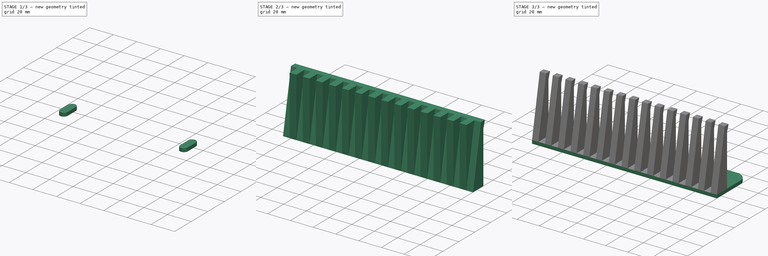
[diagram: build sequence overview — one tinted view per stage of 3, left to right]
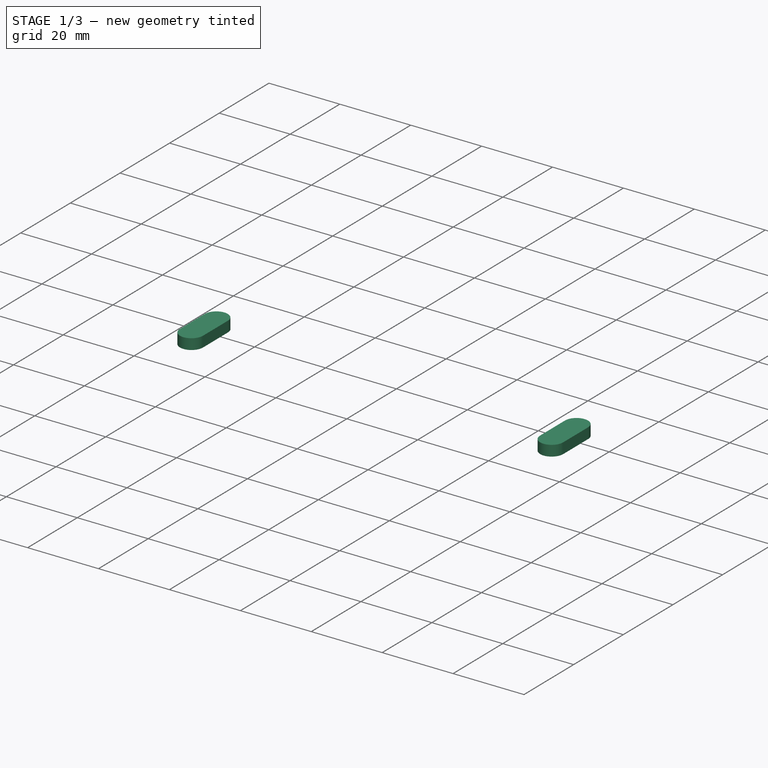
[diagram: stage 1 of 3 — iso view after this stage's code; geometry added in this stage tinted green]
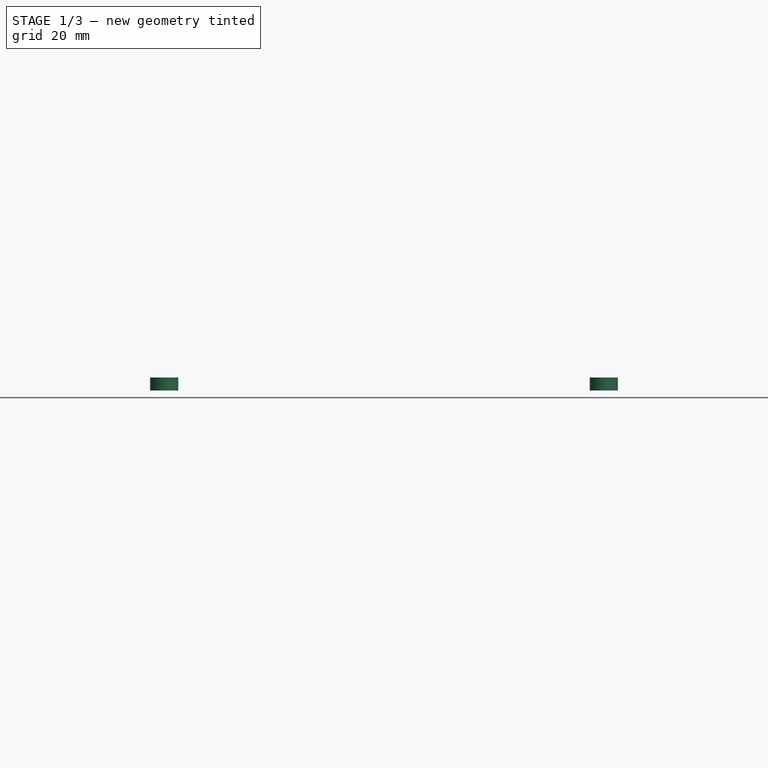
[diagram: stage 1 of 3 — front view after this stage's code; geometry added in this stage tinted green]
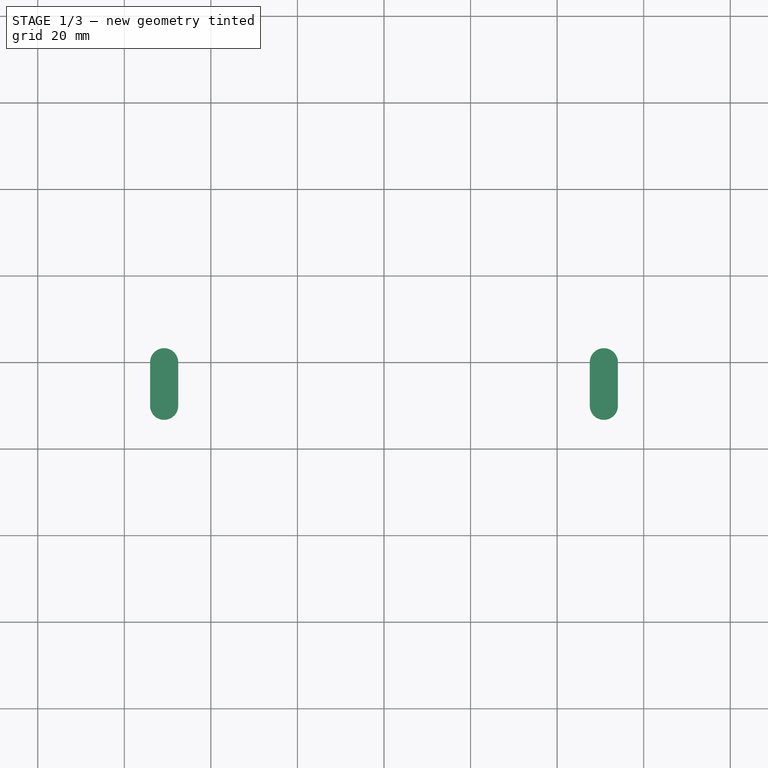
[diagram: stage 1 of 3 — top view after this stage's code; geometry added in this stage tinted green]
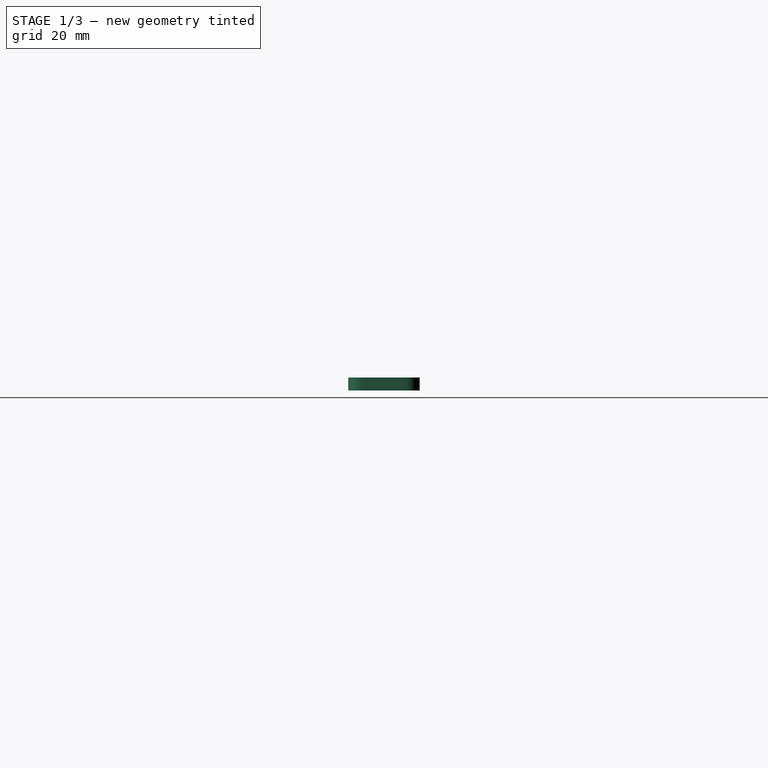
[diagram: stage 1 of 3 — right view after this stage's code; geometry added in this stage tinted green]
FCSTD DOCUMENT  (FreeCAD 0.16R6700 (Git))
Label: wirerack
License: All rights reserved
LicenseURL: http://en.wikipedia.org/wiki/All_rights_reserved
objects: Sketcher::SketchObject×4, Part::Extrusion×4, Part::Cut×2, Part::MultiFuse×1
note: 11 computed .brp shape members not serialized (recipe doc carries the construction recipe); baked Part::Feature solids carry a one-line shape summary decoded from their .brp

FEATURE [Sketcher::SketchObject] Sketch
  sketch-geometry (8):
    g0: LineSegment StartX=-83.5 StartY=20 StartZ=0 EndX=-83.5 EndY=-10 EndZ=0
    g1: LineSegment StartX=-83.5 StartY=-10 StartZ=0 EndX=83.5 EndY=-10 EndZ=0
    g2: LineSegment StartX=83.5 StartY=-10 StartZ=0 EndX=83.5 EndY=20 EndZ=0
    g3: ArcOfCircle CenterX=-73.5 CenterY=20 CenterZ=0 NormalX=0 NormalY=0 NormalZ=1 Radius=10 StartAngle=1.5708 EndAngle=3.14159
    g4: ArcOfCircle CenterX=73.5 CenterY=20 CenterZ=0 NormalX=0 NormalY=0 NormalZ=1 Radius=10 StartAngle=6.28318 EndAngle=7.85518
    g5: LineSegment StartX=-73.5 StartY=30 StartZ=0 EndX=73.488 EndY=30 EndZ=0
    g6: Circle CenterX=50.8 CenterY=10 CenterZ=0 NormalX=0 NormalY=0 NormalZ=1 Radius=4.6875
    g7: Circle CenterX=-50.8 CenterY=10 CenterZ=0 NormalX=0 NormalY=0 NormalZ=1 Radius=4.6875
  constraints (26):
    c: Vertical(g0)
    c: Coincident(g0,g1)
    c: Horizontal(g1)
    c: Coincident(g1,g2)
    c: Vertical(g2)
    c: DistanceX(g-1,g1) = 83.5
    c: DistanceX(g1,g1) = 167
    c: Coincident(g5,g4)
    c: Horizontal(g5)
    c: Tangent(g5,g3)
    c: DistanceX(g-1,g6) = 50.8
    c: Equal(g2,g0)
    c: DistanceY(g2,g2) = 30
    c: Coincident(g2,g4)
    c: DistanceY(g1,g4) = 40
    c: Coincident(g0,g3)
    c: DistanceY(g1,g-1) = 10
    c: Radius(g6) = 4.6875
    c: Radius(g3) = 10
    c: Radius(g4) = 10
    c: DistanceY(g-1,g6) = 10
    c: Radius(g7) = 4.6875
    c: DistanceX(g7,g-1) = 50.8
    c: Coincident(g3,g5)
    c: DistanceY(g-1,g7) = 10
    c: DistanceX(g5,g5) = 146.988
FEATURE [Part::Extrusion] Extrude
  Base = -> Sketch
  Dir = (0,0,3)
  Solid = true
FEATURE [Sketcher::SketchObject] Sketch001
  Placement = pos=(0,0,3) rot=(0,0,1;0rad)
  Support = -> Extrude [Face10]
  sketch-geometry (9):
    g0: ArcOfCircle CenterX=-50.8 CenterY=10 CenterZ=0 NormalX=0 NormalY=0 NormalZ=1 Radius=3.25 StartAngle=3.14159 EndAngle=6.28319
    g1: ArcOfCircle CenterX=-50.8 CenterY=20 CenterZ=0 NormalX=0 NormalY=0 NormalZ=1 Radius=3.25 StartAngle=0 EndAngle=3.14159
    g2: LineSegment StartX=-47.55 StartY=10 StartZ=0 EndX=-47.55 EndY=20 EndZ=0
    g3: LineSegment StartX=-54.05 StartY=10 StartZ=0 EndX=-54.05 EndY=20 EndZ=0
    g4: ArcOfCircle CenterX=50.8 CenterY=10 CenterZ=0 NormalX=0 NormalY=0 NormalZ=1 Radius=3.25 StartAngle=3.14159 EndAngle=6.28319
    g5: ArcOfCircle CenterX=50.8 CenterY=20 CenterZ=0 NormalX=0 NormalY=0 NormalZ=1 Radius=3.25 StartAngle=0 EndAngle=3.14159
    g6: LineSegment StartX=54.05 StartY=10 StartZ=0 EndX=54.05 EndY=20 EndZ=0
    g7: LineSegment StartX=47.55 StartY=10 StartZ=0 EndX=47.55 EndY=20 EndZ=0
    g8: LineSegment [constr] StartX=-54.05 StartY=10 StartZ=0 EndX=47.55 EndY=10 EndZ=0
  constraints (22):
    c: Tangent(g0,g3) = 1.5708
    c: Tangent(g0,g2) = -1.5708
    c: Tangent(g2,g1) = -1.5708
    c: Tangent(g3,g1) = 1.5708
    c: Vertical(g2)
    c: Equal(g0,g1)
    c: DistanceX(g0,g-1) = 50.8
    c: Radius(g0) = 3.25
    c: DistanceY(g-1,g0) = 10
    c: DistanceY(g2,g2) = 10
    c: Tangent(g4,g7) = 1.5708
    c: Tangent(g4,g6) = -1.5708
    c: Tangent(g6,g5) = -1.5708
    c: Tangent(g7,g5) = 1.5708
    c: Vertical(g6)
    c: Equal(g4,g5)
    c: Radius(g4) = 3.25
    c: DistanceY(g6,g6) = 10
    c: Coincident(g0,g8)
    c: Coincident(g4,g8)
    c: Distance(g8) = 101.6
    c: Angle(g8) = 0
FEATURE [Part::Extrusion] Extrude001
  Base = -> Sketch001
  Dir = (0,0,-3)
  Solid = true
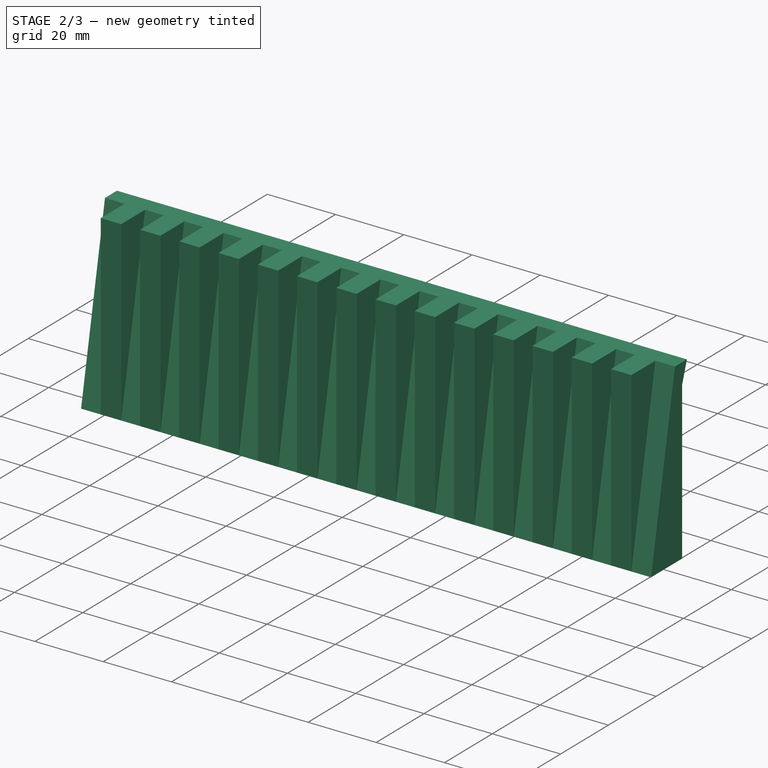
[diagram: stage 2 of 3 — iso view after this stage's code; geometry added in this stage tinted green]
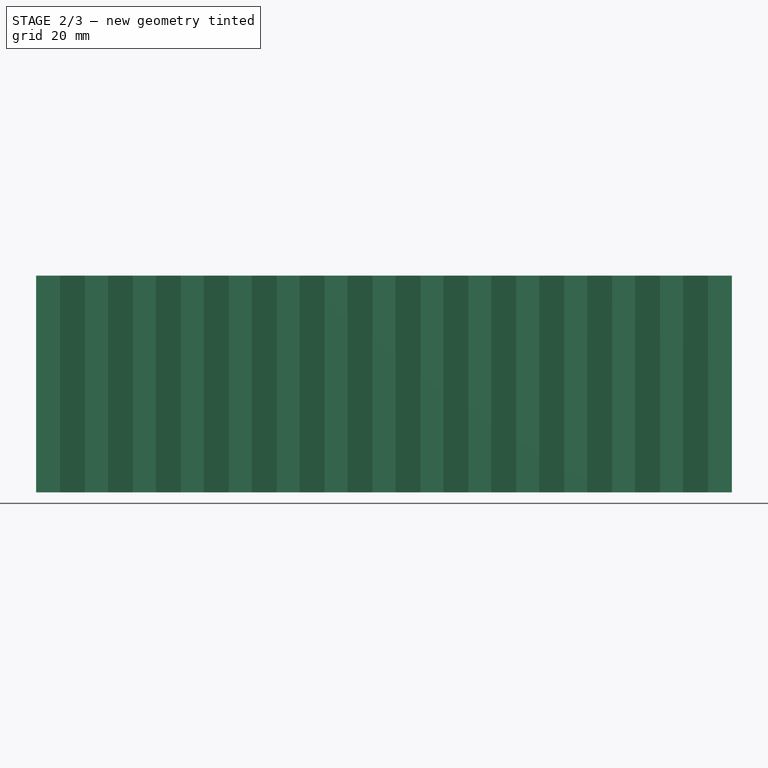
[diagram: stage 2 of 3 — front view after this stage's code; geometry added in this stage tinted green]
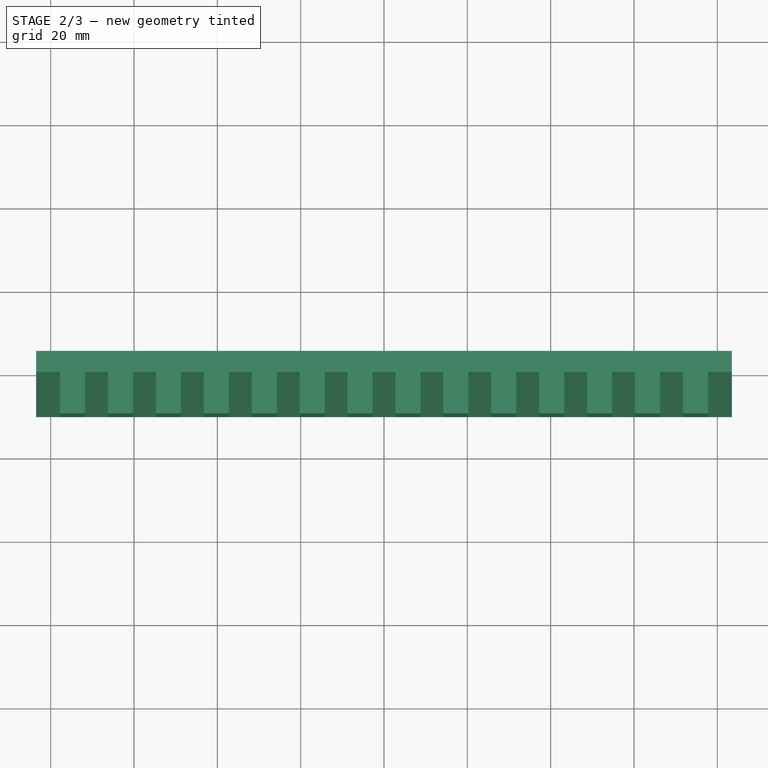
[diagram: stage 2 of 3 — top view after this stage's code; geometry added in this stage tinted green]
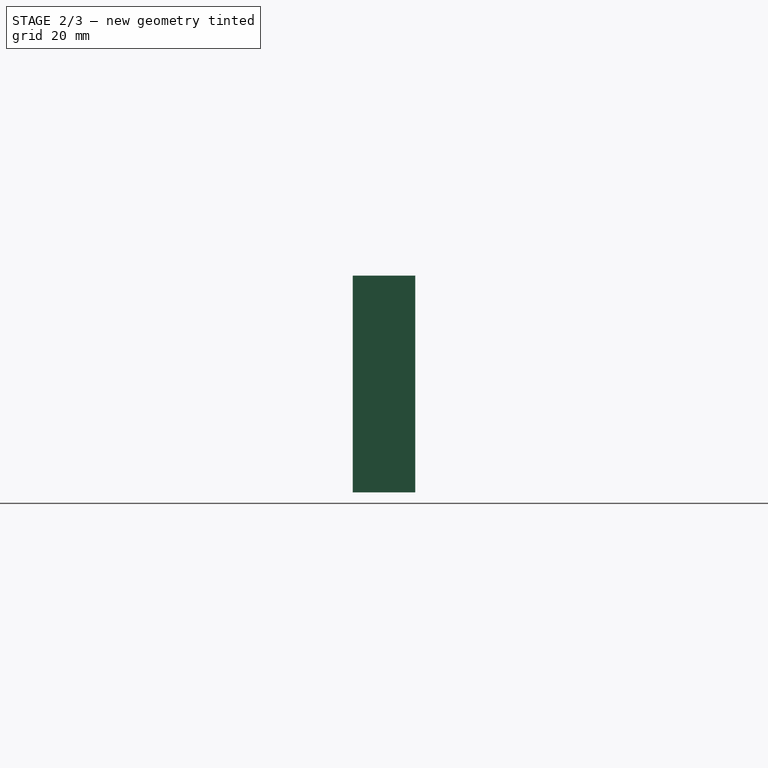
[diagram: stage 2 of 3 — right view after this stage's code; geometry added in this stage tinted green]
FEATURE [Part::Cut] Cut
  Base = -> Extrude
  Tool = -> Extrude001
FEATURE [Sketcher::SketchObject] Sketch003
  Placement = pos=(-83.5,0,0) rot=(0.57735,-0.57735,-0.57735;2.0944rad)
  Support = -> Cut [Face1]
  sketch-geometry (5):
    g0: LineSegment StartX=0 StartY=55 StartZ=0 EndX=-5 EndY=55 EndZ=0
    g1: LineSegment StartX=-5 StartY=55 StartZ=0 EndX=-3 EndY=49 EndZ=0
    g2: LineSegment StartX=-3 StartY=49 StartZ=0 EndX=-3 EndY=3 EndZ=0
    g3: LineSegment StartX=0 StartY=55 StartZ=0 EndX=10 EndY=3 EndZ=0
    g4: LineSegment StartX=10 StartY=3 StartZ=0 EndX=-3 EndY=3 EndZ=0
  constraints (15):
    c: PointOnObject(g0,g-2)
    c: Horizontal(g0)
    c: Coincident(g0,g1)
    c: Coincident(g1,g2)
    c: Vertical(g2)
    c: DistanceX(g0,g0) = 5
    c: DistanceY(g2,g2) = 46
    c: Coincident(g2,g4)
    c: Coincident(g3,g4)
    c: Coincident(g0,g3)
    c: DistanceX(g4,g4) = 13
    c: DistanceY(g3,g0) = 52
    c: DistanceY(g-1,g2) = 3
    c: DistanceX(g2,g-1) = 3
    c: Horizontal(g4)
FEATURE [Part::Extrusion] Extrude002
  Base = -> Sketch003
  Dir = (167,0,0)
  Solid = true
FEATURE [Sketcher::SketchObject] Sketch004
  Placement = pos=(0,-10,0) rot=(1,0,0;1.5708rad)
  Support = -> Cut [Face3]
  sketch-geometry (69):
    g0: LineSegment StartX=-77.75 StartY=55 StartZ=0 EndX=-71.75 EndY=55 EndZ=0
    g1: LineSegment StartX=-71.75 StartY=55 StartZ=0 EndX=-71.75 EndY=3 EndZ=0
    g2: LineSegment StartX=-71.75 StartY=3 StartZ=0 EndX=-77.75 EndY=3 EndZ=0
    g3: LineSegment StartX=-77.75 StartY=3 StartZ=0 EndX=-77.75 EndY=55 EndZ=0
    g4: LineSegment StartX=-66.25 StartY=55 StartZ=0 EndX=-60.25 EndY=55 EndZ=0
    g5: LineSegment StartX=-60.25 StartY=55 StartZ=0 EndX=-60.25 EndY=3 EndZ=0
    g6: LineSegment StartX=-60.25 StartY=3 StartZ=0 EndX=-66.25 EndY=3 EndZ=0
    g7: LineSegment StartX=-66.25 StartY=3 StartZ=0 EndX=-66.25 EndY=55 EndZ=0
    g8: LineSegment [constr] StartX=-77.75 StartY=55 StartZ=0 EndX=-66.25 EndY=55 EndZ=0
    g9: LineSegment StartX=-54.75 StartY=55 StartZ=0 EndX=-48.75 EndY=55 EndZ=0
    g10: LineSegment StartX=-48.75 StartY=55 StartZ=0 EndX=-48.75 EndY=3 EndZ=0
    g11: LineSegment StartX=-48.75 StartY=3 StartZ=0 EndX=-54.75 EndY=3 EndZ=0
    g12: LineSegment StartX=-54.75 StartY=3 StartZ=0 EndX=-54.75 EndY=55 EndZ=0
    g13: LineSegment [constr] StartX=-66.25 StartY=55 StartZ=0 EndX=-54.75 EndY=55 EndZ=0
    g14: LineSegment StartX=-43.25 StartY=55 StartZ=0 EndX=-37.25 EndY=55 EndZ=0
    g15: LineSegment StartX=-37.25 StartY=55 StartZ=0 EndX=-37.25 EndY=3 EndZ=0
    g16: LineSegment StartX=-37.25 StartY=3 StartZ=0 EndX=-43.25 EndY=3 EndZ=0
    g17: LineSegment StartX=-43.25 StartY=3 StartZ=0 EndX=-43.25 EndY=55 EndZ=0
    g18: LineSegment [constr] StartX=-54.75 StartY=55 StartZ=0 EndX=-43.25 EndY=55 EndZ=0
    g19: LineSegment StartX=-31.75 StartY=55 StartZ=0 EndX=-25.75 EndY=55 EndZ=0
    g20: LineSegment StartX=-25.75 StartY=55 StartZ=0 EndX=-25.75 EndY=3 EndZ=0
    g21: LineSegment StartX=-25.75 StartY=3 StartZ=0 EndX=-31.75 EndY=3 EndZ=0
    g22: LineSegment StartX=-31.75 StartY=3 StartZ=0 EndX=-31.75 EndY=55 EndZ=0
    g23: LineSegment [constr] StartX=-43.25 StartY=55 StartZ=0 EndX=-31.75 EndY=55 EndZ=0
    g24: LineSegment StartX=-20.25 StartY=55 StartZ=0 EndX=-14.25 EndY=55 EndZ=0
    g25: LineSegment StartX=-14.25 StartY=55 StartZ=0 EndX=-14.25 EndY=3 EndZ=0
    g26: LineSegment StartX=-14.25 StartY=3 StartZ=0 EndX=-20.25 EndY=3 EndZ=0
    g27: LineSegment StartX=-20.25 StartY=3 StartZ=0 EndX=-20.25 EndY=55 EndZ=0
    g28: LineSegment [constr] StartX=-31.75 StartY=55 StartZ=0 EndX=-20.25 EndY=55 EndZ=0
    g29: LineSegment StartX=-8.75 StartY=55 StartZ=0 EndX=-2.75 EndY=55 EndZ=0
    g30: LineSegment StartX=-2.75 StartY=55 StartZ=0 EndX=-2.75 EndY=3 EndZ=0
    g31: LineSegment StartX=-2.75 StartY=3 StartZ=0 EndX=-8.75 EndY=3 EndZ=0
    g32: LineSegment StartX=-8.75 StartY=3 StartZ=0 EndX=-8.75 EndY=55 EndZ=0
    g33: LineSegment [constr] StartX=-20.25 StartY=55 StartZ=0 EndX=-8.75 EndY=55 EndZ=0
    g34: LineSegment StartX=2.75 StartY=55 StartZ=0 EndX=8.75 EndY=55 EndZ=0
    g35: LineSegment StartX=8.75 StartY=55 StartZ=0 EndX=8.75 EndY=3 EndZ=0
    g36: LineSegment StartX=8.75 StartY=3 StartZ=0 EndX=2.75 EndY=3 EndZ=0
    g37: LineSegment StartX=2.75 StartY=3 StartZ=0 EndX=2.75 EndY=55 EndZ=0
    g38: LineSegment [constr] StartX=-8.75 StartY=55 StartZ=0 EndX=2.75 EndY=55 EndZ=0
    g39: LineSegment StartX=14.25 StartY=55 StartZ=0 EndX=20.25 EndY=55 EndZ=0
    g40: LineSegment StartX=20.25 StartY=55 StartZ=0 EndX=20.25 EndY=3 EndZ=0
    g41: LineSegment StartX=20.25 StartY=3 StartZ=0 EndX=14.25 EndY=3 EndZ=0
    g42: LineSegment StartX=14.25 StartY=3 StartZ=0 EndX=14.25 EndY=55 EndZ=0
    g43: LineSegment [constr] StartX=2.75 StartY=55 StartZ=0 EndX=14.25 EndY=55 EndZ=0
    g44: LineSegment StartX=25.75 StartY=55 StartZ=0 EndX=31.75 EndY=55 EndZ=0
    g45: LineSegment StartX=31.75 StartY=55 StartZ=0 EndX=31.75 EndY=3 EndZ=0
    g46: LineSegment StartX=31.75 StartY=3 StartZ=0 EndX=25.75 EndY=3 EndZ=0
    g47: LineSegment StartX=25.75 StartY=3 StartZ=0 EndX=25.75 EndY=55 EndZ=0
    g48: LineSegment [constr] StartX=14.25 StartY=55 StartZ=0 EndX=25.75 EndY=55 EndZ=0
    g49: LineSegment StartX=37.25 StartY=55 StartZ=0 EndX=43.25 EndY=55 EndZ=0
    g50: LineSegment StartX=43.25 StartY=55 StartZ=0 EndX=43.25 EndY=3 EndZ=0
    g51: LineSegment StartX=43.25 StartY=3 StartZ=0 EndX=37.25 EndY=3 EndZ=0
    g52: LineSegment StartX=37.25 StartY=3 StartZ=0 EndX=37.25 EndY=55 EndZ=0
    g53: LineSegment [constr] StartX=25.75 StartY=55 StartZ=0 EndX=37.25 EndY=55 EndZ=0
    g54: LineSegment StartX=48.75 StartY=55 StartZ=0 EndX=54.75 EndY=55 EndZ=0
    g55: LineSegment StartX=54.75 StartY=55 StartZ=0 EndX=54.75 EndY=3 EndZ=0
    g56: LineSegment StartX=54.75 StartY=3 StartZ=0 EndX=48.75 EndY=3 EndZ=0
    g57: LineSegment StartX=48.75 StartY=3 StartZ=0 EndX=48.75 EndY=55 EndZ=0
    g58: LineSegment [constr] StartX=37.25 StartY=55 StartZ=0 EndX=48.75 EndY=55 EndZ=0
    g59: LineSegment StartX=60.25 StartY=55 StartZ=0 EndX=66.25 EndY=55 EndZ=0
    g60: LineSegment StartX=66.25 StartY=55 StartZ=0 EndX=66.25 EndY=3 EndZ=0
    g61: LineSegment StartX=66.25 StartY=3 StartZ=0 EndX=60.25 EndY=3 EndZ=0
    g62: LineSegment StartX=60.25 StartY=3 StartZ=0 EndX=60.25 EndY=55 EndZ=0
    g63: LineSegment [constr] StartX=48.75 StartY=55 StartZ=0 EndX=60.25 EndY=55 EndZ=0
    g64: LineSegment StartX=71.75 StartY=55 StartZ=0 EndX=77.75 EndY=55 EndZ=0
    g65: LineSegment StartX=77.75 StartY=55 StartZ=0 EndX=77.75 EndY=3 EndZ=0
    g66: LineSegment StartX=77.75 StartY=3 StartZ=0 EndX=71.75 EndY=3 EndZ=0
    g67: LineSegment StartX=71.75 StartY=3 StartZ=0 EndX=71.75 EndY=55 EndZ=0
    g68: LineSegment [constr] StartX=60.25 StartY=55 StartZ=0 EndX=71.75 EndY=55 EndZ=0
  constraints (194):
    c: Coincident(g0,g1)
    c: Coincident(g1,g2)
    c: Coincident(g2,g3)
    c: Coincident(g3,g0)
    c: Horizontal(g0)
    c: Horizontal(g2)
    c: Vertical(g1)
    c: Vertical(g3)
    c: DistanceX(g2,g-1) = 77.75
    c: DistanceX(g2,g2) = 6
    c: DistanceY(g3,g3) = 52
    c: DistanceY(g-1,g2) = 3
    c: Coincident(g4,g5)
    c: Coincident(g5,g6)
    c: Coincident(g6,g7)
    c: Coincident(g7,g4)
    c: Horizontal(g4)
    c: Horizontal(g6)
    c: Vertical(g5)
    c: Vertical(g7)
    c: DistanceX(g6,g6) = 6
    c: DistanceY(g7,g7) = 52
    c: Coincident(g0,g8)
    c: Coincident(g4,g8)
    c: Distance(g8) = 11.5
    c: Angle(g8) = 0
    c: Coincident(g9,g10)
    c: Coincident(g10,g11)
    c: Coincident(g11,g12)
    c: Coincident(g12,g9)
    c: Horizontal(g9)
    c: Horizontal(g11)
    c: Vertical(g10)
    c: Vertical(g12)
    c: DistanceX(g11,g11) = 6
    c: DistanceY(g12,g12) = 52
    c: Coincident(g4,g13)
    c: Coincident(g9,g13)
    c: Equal(g8,g13)
    c: Parallel(g13,g8)
    c: Coincident(g14,g15)
    c: Coincident(g15,g16)
    c: Coincident(g16,g17)
    c: Coincident(g17,g14)
    c: Horizontal(g14)
    c: Horizontal(g16)
    c: Vertical(g15)
    c: Vertical(g17)
    c: DistanceX(g16,g16) = 6
    c: DistanceY(g17,g17) = 52
    c: Coincident(g9,g18)
    c: Coincident(g14,g18)
    c: Equal(g8,g18)
    c: Parallel(g18,g8)
    c: Coincident(g19,g20)
    c: Coincident(g20,g21)
    c: Coincident(g21,g22)
    c: Coincident(g22,g19)
    c: Horizontal(g19)
    c: Horizontal(g21)
    c: Vertical(g20)
    c: Vertical(g22)
    c: DistanceX(g21,g21) = 6
    c: DistanceY(g22,g22) = 52
    c: Coincident(g14,g23)
    c: Coincident(g19,g23)
    c: Equal(g8,g23)
    c: Parallel(g23,g8)
    c: Coincident(g24,g25)
    c: Coincident(g25,g26)
    c: Coincident(g26,g27)
    c: Coincident(g27,g24)
    c: Horizontal(g24)
    c: Horizontal(g26)
    c: Vertical(g25)
    c: Vertical(g27)
    c: DistanceX(g26,g26) = 6
    c: DistanceY(g27,g27) = 52
    c: Coincident(g19,g28)
    c: Coincident(g24,g28)
    c: Equal(g8,g28)
    c: Parallel(g28,g8)
    c: Coincident(g29,g30)
    c: Coincident(g30,g31)
    c: Coincident(g31,g32)
    c: Coincident(g32,g29)
    c: Horizontal(g29)
    c: Horizontal(g31)
    c: Vertical(g30)
    c: Vertical(g32)
    c: DistanceX(g31,g31) = 6
    c: DistanceY(g32,g32) = 52
    c: Coincident(g24,g33)
    c: Coincident(g29,g33)
    c: Equal(g8,g33)
    c: Parallel(g33,g8)
    c: Coincident(g34,g35)
    c: Coincident(g35,g36)
    c: Coincident(g36,g37)
    c: Coincident(g37,g34)
    c: Horizontal(g34)
    c: Horizontal(g36)
    c: Vertical(g35)
    c: Vertical(g37)
    c: DistanceX(g36,g36) = 6
    c: DistanceY(g37,g37) = 52
    c: Coincident(g29,g38)
    c: Coincident(g34,g38)
    c: Equal(g8,g38)
    c: Parallel(g38,g8)
    c: Coincident(g39,g40)
    c: Coincident(g40,g41)
    c: Coincident(g41,g42)
    c: Coincident(g42,g39)
    c: Horizontal(g39)
    c: Horizontal(g41)
    c: Vertical(g40)
    c: Vertical(g42)
    c: DistanceX(g41,g41) = 6
    c: DistanceY(g42,g42) = 52
    c: Coincident(g34,g43)
    c: Coincident(g39,g43)
    c: Equal(g8,g43)
    c: Parallel(g43,g8)
    c: Coincident(g44,g45)
    c: Coincident(g45,g46)
    c: Coincident(g46,g47)
    c: Coincident(g47,g44)
    c: Horizontal(g44)
    c: Horizontal(g46)
    c: Vertical(g45)
    c: Vertical(g47)
    c: DistanceX(g46,g46) = 6
    c: DistanceY(g47,g47) = 52
    c: Coincident(g39,g48)
    c: Coincident(g44,g48)
    c: Equal(g8,g48)
    c: Parallel(g48,g8)
    c: Coincident(g49,g50)
    c: Coincident(g50,g51)
    c: Coincident(g51,g52)
    c: Coincident(g52,g49)
    c: Horizontal(g49)
    c: Horizontal(g51)
    c: Vertical(g50)
    c: Vertical(g52)
    c: DistanceX(g51,g51) = 6
    c: DistanceY(g52,g52) = 52
    c: Coincident(g44,g53)
    c: Coincident(g49,g53)
    c: Equal(g8,g53)
    c: Parallel(g53,g8)
    c: Coincident(g54,g55)
    c: Coincident(g55,g56)
    c: Coincident(g56,g57)
    c: Coincident(g57,g54)
    c: Horizontal(g54)
    c: Horizontal(g56)
    c: Vertical(g55)
    c: Vertical(g57)
    c: DistanceX(g56,g56) = 6
    c: DistanceY(g57,g57) = 52
    c: Coincident(g49,g58)
    c: Coincident(g54,g58)
    c: Equal(g8,g58)
    c: Parallel(g58,g8)
    c: Coincident(g59,g60)
    c: Coincident(g60,g61)
    c: Coincident(g61,g62)
    c: Coincident(g62,g59)
    c: Horizontal(g59)
    c: Horizontal(g61)
    c: Vertical(g60)
    c: Vertical(g62)
    c: DistanceX(g61,g61) = 6
    c: DistanceY(g62,g62) = 52
    c: Coincident(g54,g63)
    c: Coincident(g59,g63)
    c: Equal(g8,g63)
    c: Parallel(g63,g8)
    c: Coincident(g64,g65)
    c: Coincident(g65,g66)
    c: Coincident(g66,g67)
    c: Coincident(g67,g64)
    c: Horizontal(g64)
    c: Horizontal(g66)
    c: Vertical(g65)
    c: Vertical(g67)
    c: DistanceX(g66,g66) = 6
    c: DistanceY(g67,g67) = 52
    c: Coincident(g59,g68)
    c: Coincident(g64,g68)
    c: Equal(g8,g68)
    c: Parallel(g68,g8)
FEATURE [Part::Extrusion] Extrude003
  Base = -> Sketch004
  Dir = (0,15,0)
  Solid = true
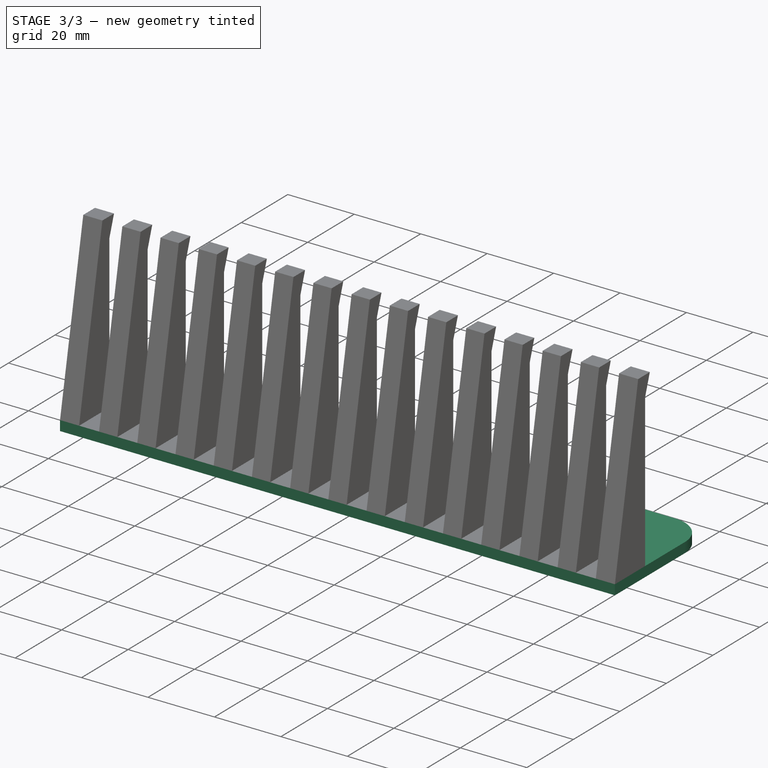
[diagram: stage 3 of 3 — iso view after this stage's code; geometry added in this stage tinted green]
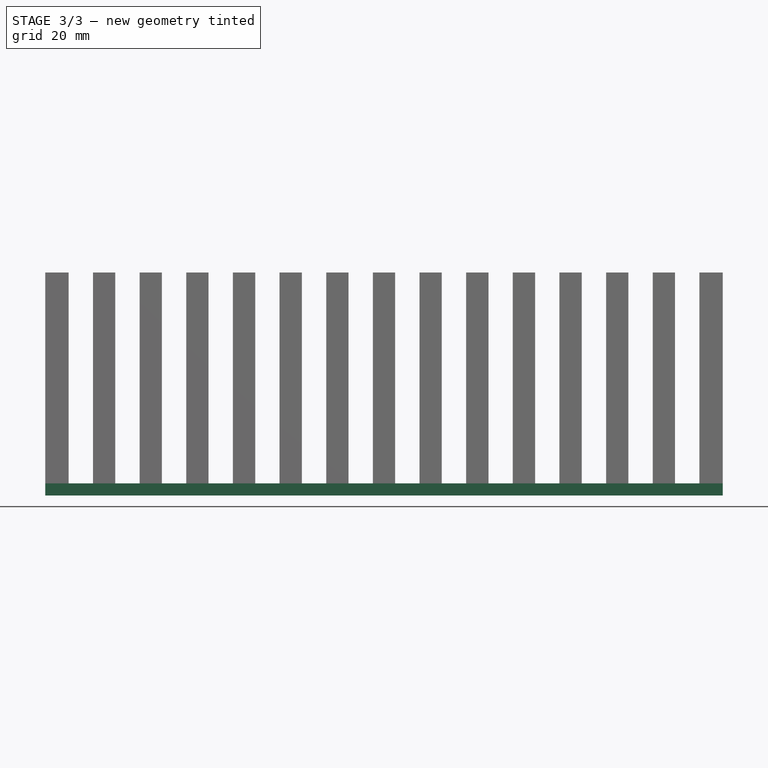
[diagram: stage 3 of 3 — front view after this stage's code; geometry added in this stage tinted green]
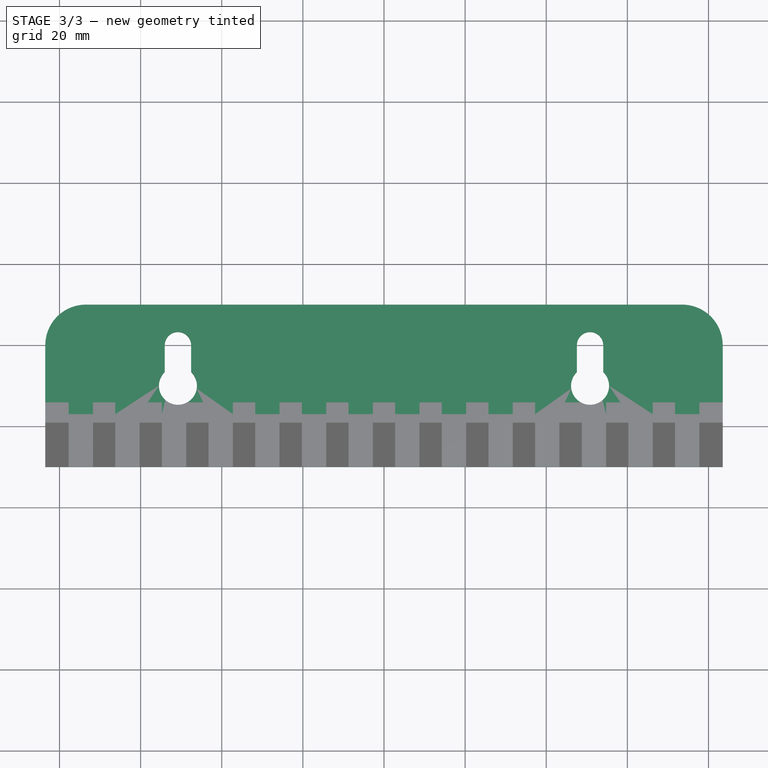
[diagram: stage 3 of 3 — top view after this stage's code; geometry added in this stage tinted green]
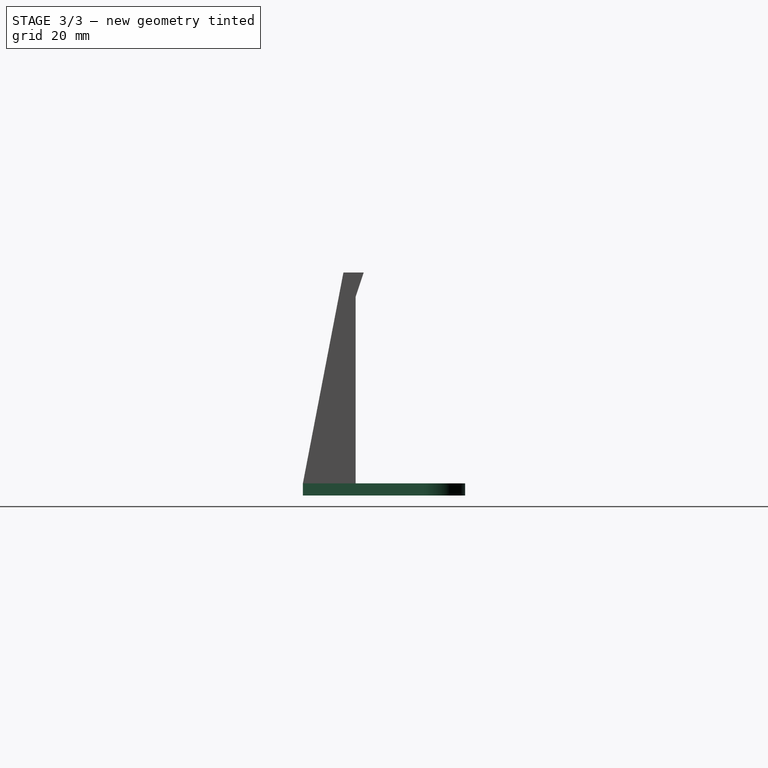
[diagram: stage 3 of 3 — right view after this stage's code; geometry added in this stage tinted green]
FEATURE [Part::Cut] Cut001
  Base = -> Extrude002
  Tool = -> Extrude003
FEATURE [Part::MultiFuse] Fusion
  Shapes = -> [Cut,Cut001]
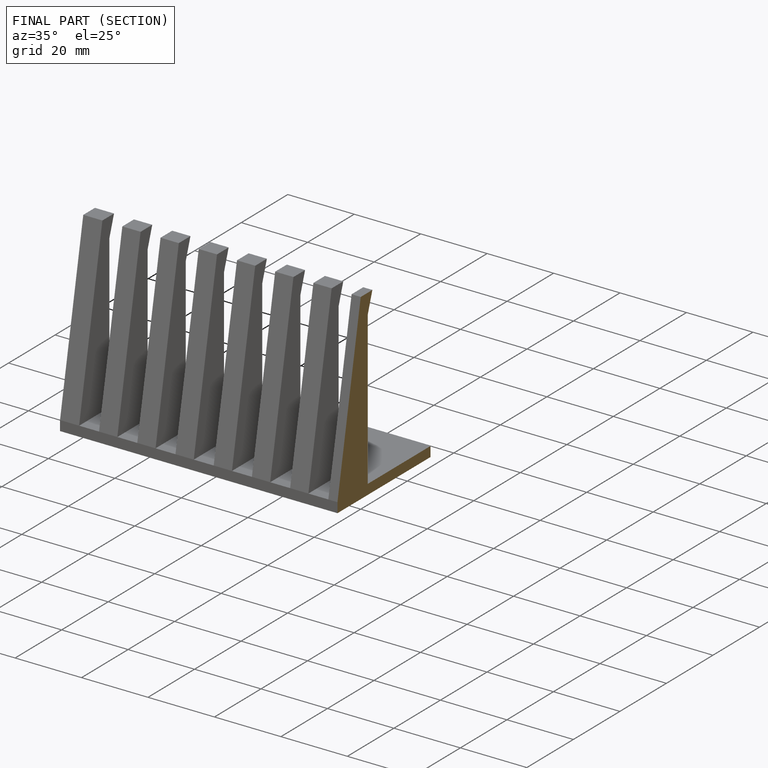
[diagram: finished part — half-section view (interior)]
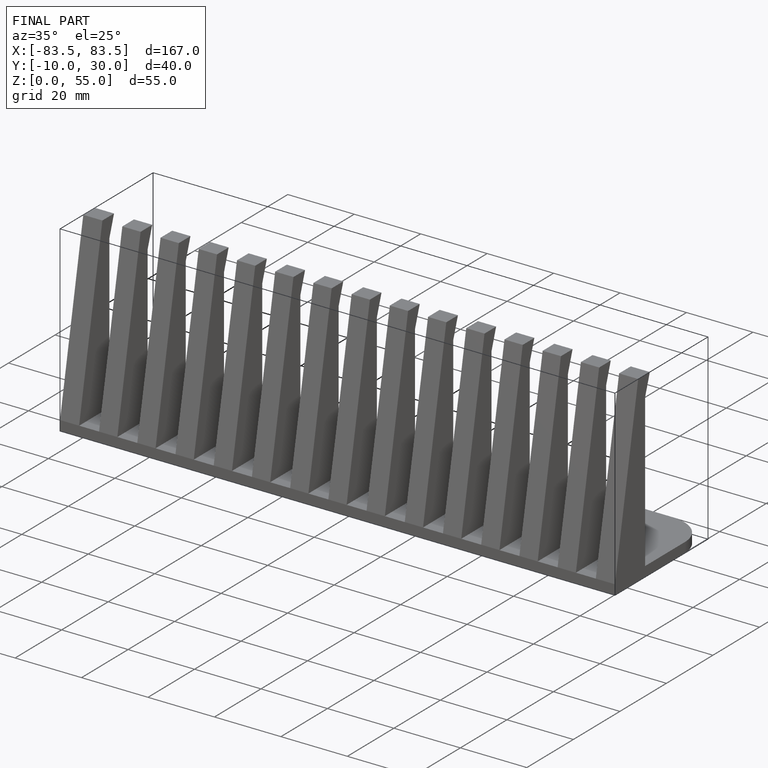
[diagram: finished part — iso view with bounding-box wireframe]
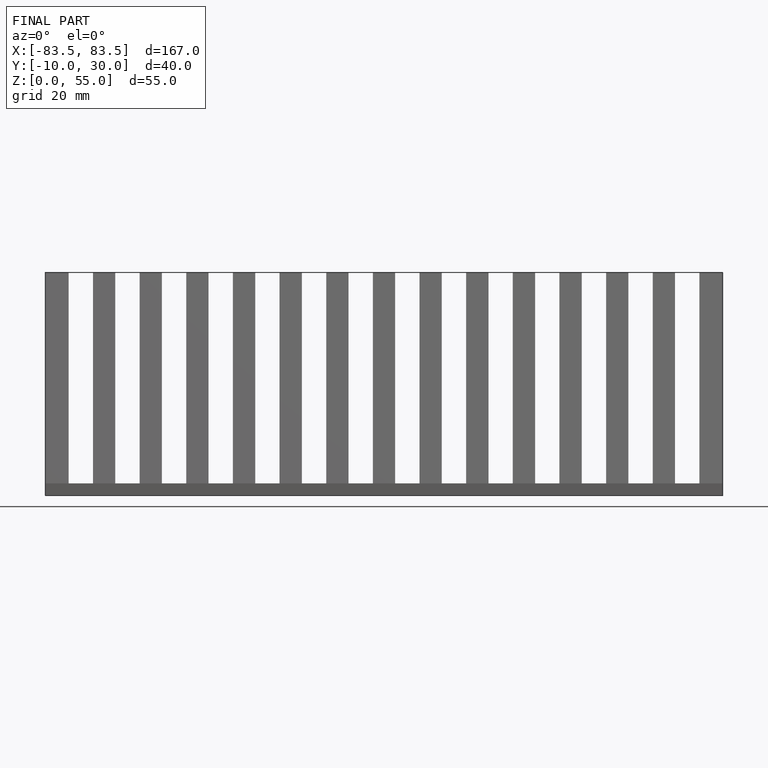
[diagram: finished part — front view with bounding-box wireframe]
